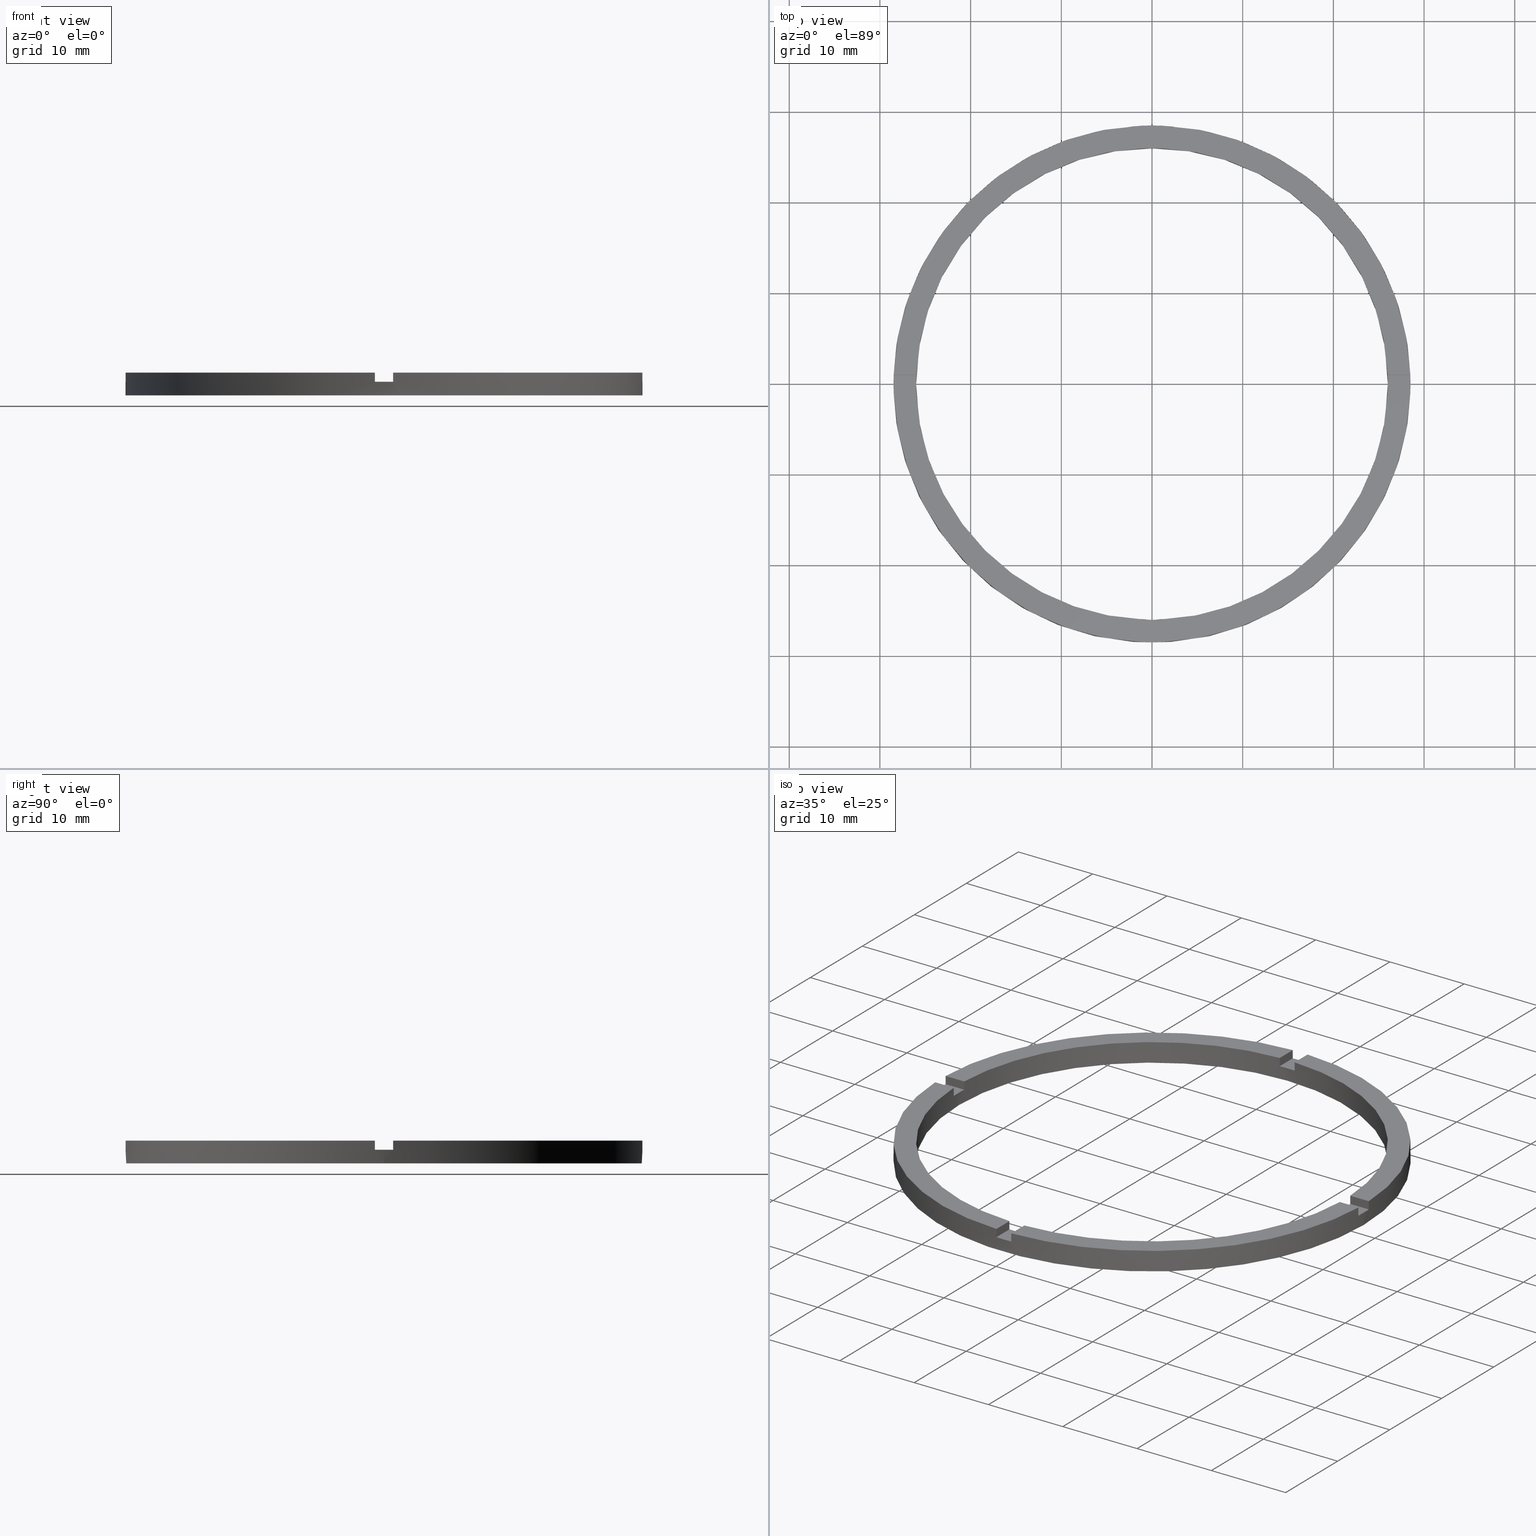
[diagram: canonical four-view strip — front | top / right | iso, engineering-drawing reading convention]
A machine part, canonical four-view strip (front | top / right | iso — engineering-drawing reading convention). The complete STEP part file that produces these views, byte-faithful:
ISO-10303-21;
HEADER;
FILE_DESCRIPTION (( 'STEP AP203' ),
    '1' );
FILE_NAME ('514119.step',
    '2024-12-26T02:39:20',
    ( 'MSI' ),
    ( '' ),
    'SwSTEP 2.0',
    'SolidWorks 2020',
    '' );
FILE_SCHEMA (( 'CONFIG_CONTROL_DESIGN' ));
ENDSEC;

DATA;
#1 = DIRECTION ( 'NONE',  ( -1.000000000000000000, -4.336808689942018352E-17, -0.000000000000000000 ) ) ;
#2 = EDGE_CURVE ( 'NONE', #60, #546, #38, .T. ) ;
#3 = DIRECTION ( 'NONE',  ( -1.301042606982605567E-16, 1.000000000000000000, -0.000000000000000000 ) ) ;
#4 = ADVANCED_FACE ( 'NONE', ( #574 ), #250, .T. ) ;
#5 = DIRECTION ( 'NONE',  ( 1.000000000000000000, 0.000000000000000000, 0.000000000000000000 ) ) ;
#6 = CARTESIAN_POINT ( 'NONE',  ( 0.9999999999998404610, -28.48245073725223264, 2.500000000000000000 ) ) ;
#7 = PERSON_AND_ORGANIZATION_ROLE ( 'design_supplier' ) ;
#8 = DIRECTION ( 'NONE',  ( 0.000000000000000000, 0.000000000000000000, 1.000000000000000000 ) ) ;
#9 = CARTESIAN_POINT ( 'NONE',  ( 0.000000000000000000, 0.000000000000000000, 1.500000000000000000 ) ) ;
#10 = CC_DESIGN_PERSON_AND_ORGANIZATION_ASSIGNMENT ( #206, #340, ( #618 ) ) ;
#11 = ADVANCED_FACE ( 'NONE', ( #47 ), #48, .T. ) ;
#12 = LINE ( 'NONE', #6, #277 ) ;
#13 = EDGE_CURVE ( 'NONE', #58, #718, #308, .T. ) ;
#14 = CARTESIAN_POINT ( 'NONE',  ( 0.9999999999998391287, -18.50000000000018474, 1.500000000000000000 ) ) ;
#15 = DIRECTION ( 'NONE',  ( 1.000000000000000000, 0.000000000000000000, 0.000000000000000000 ) ) ;
#16 = AXIS2_PLACEMENT_3D ( 'NONE', #771, #600, #246 ) ;
#17 = EDGE_CURVE ( 'NONE', #582, #305, #311, .T. ) ;
#18 = DIRECTION ( 'NONE',  ( -1.000000000000000000, -1.301042606982605567E-16, 0.000000000000000000 ) ) ;
#19 = DIRECTION ( 'NONE',  ( -0.000000000000000000, -0.000000000000000000, -1.000000000000000000 ) ) ;
#20 = DIRECTION ( 'NONE',  ( 1.000000000000000000, 0.000000000000000000, 0.000000000000000000 ) ) ;
#21 = ADVANCED_FACE ( 'NONE', ( #572 ), #304, .T. ) ;
#22 = DIRECTION ( 'NONE',  ( -0.000000000000000000, -0.000000000000000000, -1.000000000000000000 ) ) ;
#23 = CARTESIAN_POINT ( 'NONE',  ( 0.000000000000000000, 0.000000000000000000, 0.000000000000000000 ) ) ;
#24 = CARTESIAN_POINT ( 'NONE',  ( 26.00000000000000355, 3.184081677783118585E-15, 1.500000000000000000 ) ) ;
#25 = CARTESIAN_POINT ( 'NONE',  ( 0.000000000000000000, 0.000000000000000000, 1.500000000000000000 ) ) ;
#26 = LINE ( 'NONE', #310, #538 ) ;
#27 = ORIENTED_EDGE ( 'NONE', *, *, #177, .T. ) ;
#28 = DIRECTION ( 'NONE',  ( 1.000000000000000000, 0.000000000000000000, -0.000000000000000000 ) ) ;
#29 = ORIENTED_EDGE ( 'NONE', *, *, #494, .T. ) ;
#30 = CARTESIAN_POINT ( 'NONE',  ( -18.50000000000018474, -1.000000000000025313, 2.500000000000000000 ) ) ;
#31 = CC_DESIGN_PERSON_AND_ORGANIZATION_ASSIGNMENT ( #208, #557, ( #234 ) ) ;
#32 = EDGE_LOOP ( 'NONE', ( #575, #109, #556, #551 ) ) ;
#33 = EDGE_CURVE ( 'NONE', #51, #586, #41, .T. ) ;
#34 = DIRECTION ( 'NONE',  ( 0.000000000000000000, 0.000000000000000000, 1.000000000000000000 ) ) ;
#35 = VECTOR ( 'NONE', #601, 1000.000000000000000 ) ;
#36 = ORIENTED_EDGE ( 'NONE', *, *, #605, .T. ) ;
#37 = DIRECTION ( 'NONE',  ( -0.000000000000000000, -0.000000000000000000, -1.000000000000000000 ) ) ;
#38 = LINE ( 'NONE', #412, #35 ) ;
#39 = EDGE_CURVE ( 'NONE', #57, #305, #12, .T. ) ;
#40 = ORIENTED_EDGE ( 'NONE', *, *, #386, .T. ) ;
#41 = LINE ( 'NONE', #137, #301 ) ;
#42 = CARTESIAN_POINT ( 'NONE',  ( 0.000000000000000000, 0.000000000000000000, 2.500000000000000000 ) ) ;
#43 = ORIENTED_EDGE ( 'NONE', *, *, #33, .T. ) ;
#44 = DIRECTION ( 'NONE',  ( -0.000000000000000000, -0.000000000000000000, -1.000000000000000000 ) ) ;
#45 = ORIENTED_EDGE ( 'NONE', *, *, #762, .T. ) ;
#46 = DIRECTION ( 'NONE',  ( 1.000000000000000000, 0.000000000000000000, 0.000000000000000000 ) ) ;
#47 = FACE_OUTER_BOUND ( 'NONE', #55, .T. ) ;
#48 = CYLINDRICAL_SURFACE ( 'NONE', #630, 28.50000000000000000 ) ;
#49 = DIRECTION ( 'NONE',  ( 1.000000000000000000, 0.000000000000000000, 0.000000000000000000 ) ) ;
#50 = AXIS2_PLACEMENT_3D ( 'NONE', #88, #527, #15 ) ;
#51 = VERTEX_POINT ( 'NONE', #87 ) ;
#52 = EDGE_CURVE ( 'NONE', #743, #331, #26, .T. ) ;
#53 = ORIENTED_EDGE ( 'NONE', *, *, #39, .F. ) ;
#54 = CARTESIAN_POINT ( 'NONE',  ( -25.98076211353316367, -1.000000000000026645, 1.500000000000000000 ) ) ;
#55 = EDGE_LOOP ( 'NONE', ( #333, #619, #772, #599, #72, #91, #294, #591, #338, #79, #603, #777 ) ) ;
#56 = ORIENTED_EDGE ( 'NONE', *, *, #13, .F. ) ;
#57 = VERTEX_POINT ( 'NONE', #479 ) ;
#58 = VERTEX_POINT ( 'NONE', #564 ) ;
#59 = ORIENTED_EDGE ( 'NONE', *, *, #431, .F. ) ;
#60 = VERTEX_POINT ( 'NONE', #711 ) ;
#61 = AXIS2_PLACEMENT_3D ( 'NONE', #280, #350, #179 ) ;
#62 = CARTESIAN_POINT ( 'NONE',  ( -28.48245073725223264, 0.9999999999999729106, 2.500000000000000000 ) ) ;
#63 = VERTEX_POINT ( 'NONE', #93 ) ;
#64 = ORIENTED_EDGE ( 'NONE', *, *, #587, .F. ) ;
#65 = ORIENTED_EDGE ( 'NONE', *, *, #268, .F. ) ;
#66 = ORIENTED_EDGE ( 'NONE', *, *, #256, .T. ) ;
#67 = EDGE_LOOP ( 'NONE', ( #467, #43, #555, #319 ) ) ;
#68 = DIRECTION ( 'NONE',  ( 0.000000000000000000, 0.000000000000000000, 1.000000000000000000 ) ) ;
#69 = ORIENTED_EDGE ( 'NONE', *, *, #184, .T. ) ;
#70 = VERTEX_POINT ( 'NONE', #570 ) ;
#71 = EDGE_LOOP ( 'NONE', ( #78, #359, #367, #203 ) ) ;
#72 = ORIENTED_EDGE ( 'NONE', *, *, #504, .F. ) ;
#73 = ADVANCED_FACE ( 'NONE', ( #675 ), #649, .F. ) ;
#74 = VERTEX_POINT ( 'NONE', #720 ) ;
#75 = VERTEX_POINT ( 'NONE', #485 ) ;
#76 = CARTESIAN_POINT ( 'NONE',  ( 25.98076211353317078, 0.9999999999998430145, 2.500000000000000000 ) ) ;
#77 = CARTESIAN_POINT ( 'NONE',  ( 0.9999999999999735767, 28.48245073725223264, 2.500000000000000000 ) ) ;
#78 = ORIENTED_EDGE ( 'NONE', *, *, #160, .T. ) ;
#79 = ORIENTED_EDGE ( 'NONE', *, *, #693, .T. ) ;
#80 = ORIENTED_EDGE ( 'NONE', *, *, #231, .T. ) ;
#81 = AXIS2_PLACEMENT_3D ( 'NONE', #665, #680, #122 ) ;
#82 = ORIENTED_EDGE ( 'NONE', *, *, #184, .F. ) ;
#83 = DIRECTION ( 'NONE',  ( -0.000000000000000000, -0.000000000000000000, -1.000000000000000000 ) ) ;
#84 = PLANE ( 'NONE',  #169 ) ;
#85 = ORIENTED_EDGE ( 'NONE', *, *, #146, .F. ) ;
#86 = ORIENTED_EDGE ( 'NONE', *, *, #242, .F. ) ;
#87 = CARTESIAN_POINT ( 'NONE',  ( 0.9999999999999735767, 25.98076211353316367, 1.500000000000000000 ) ) ;
#88 = CARTESIAN_POINT ( 'NONE',  ( 0.000000000000000000, 0.000000000000000000, 2.500000000000000000 ) ) ;
#89 = ORIENTED_EDGE ( 'NONE', *, *, #579, .F. ) ;
#90 = ORIENTED_EDGE ( 'NONE', *, *, #366, .F. ) ;
#91 = ORIENTED_EDGE ( 'NONE', *, *, #192, .T. ) ;
#92 = ORIENTED_EDGE ( 'NONE', *, *, #386, .F. ) ;
#93 = CARTESIAN_POINT ( 'NONE',  ( -28.48245073725222909, -1.000000000000027089, 1.500000000000000000 ) ) ;
#94 = CARTESIAN_POINT ( 'NONE',  ( 25.98076211353317078, 0.9999999999998430145, 1.500000000000000000 ) ) ;
#95 = ORIENTED_EDGE ( 'NONE', *, *, #498, .F. ) ;
#96 = ORIENTED_EDGE ( 'NONE', *, *, #545, .F. ) ;
#97 = DIRECTION ( 'NONE',  ( 0.000000000000000000, 0.000000000000000000, 1.000000000000000000 ) ) ;
#98 = VERTEX_POINT ( 'NONE', #24 ) ;
#99 = ORIENTED_EDGE ( 'NONE', *, *, #125, .T. ) ;
#100 = DIRECTION ( 'NONE',  ( 0.000000000000000000, 0.000000000000000000, 1.000000000000000000 ) ) ;
#101 = CARTESIAN_POINT ( 'NONE',  ( 0.000000000000000000, 0.000000000000000000, 2.500000000000000000 ) ) ;
#102 = CARTESIAN_POINT ( 'NONE',  ( 25.98076211353317078, 0.9999999999998430145, 2.500000000000000000 ) ) ;
#103 = ORIENTED_EDGE ( 'NONE', *, *, #285, .T. ) ;
#104 = CALENDAR_DATE ( 2024, 26, 12 ) ;
#105 = ORIENTED_EDGE ( 'NONE', *, *, #775, .T. ) ;
#106 = CARTESIAN_POINT ( 'NONE',  ( 0.000000000000000000, 0.000000000000000000, 0.000000000000000000 ) ) ;
#107 = ORIENTED_EDGE ( 'NONE', *, *, #553, .F. ) ;
#108 = EDGE_CURVE ( 'NONE', #747, #70, #387, .T. ) ;
#109 = ORIENTED_EDGE ( 'NONE', *, *, #750, .T. ) ;
#110 = PLANE ( 'NONE',  #593 ) ;
#111 = DIRECTION ( 'NONE',  ( 1.000000000000000000, 0.000000000000000000, -0.000000000000000000 ) ) ;
#112 = ORIENTED_EDGE ( 'NONE', *, *, #443, .T. ) ;
#113 = CALENDAR_DATE ( 2024, 26, 12 ) ;
#114 = EDGE_LOOP ( 'NONE', ( #647, #66, #59, #65, #321, #251, #517, #569, #27, #518, #327, #584 ) ) ;
#115 = DIRECTION ( 'NONE',  ( -1.000000000000000000, 0.000000000000000000, 0.000000000000000000 ) ) ;
#116 = CC_DESIGN_PERSON_AND_ORGANIZATION_ASSIGNMENT ( #469, #452, ( #398 ) ) ;
#117 = EDGE_CURVE ( 'NONE', #317, #712, #682, .T. ) ;
#118 = CARTESIAN_POINT ( 'NONE',  ( -1.000000000000026423, 28.48245073725222909, 1.500000000000000000 ) ) ;
#119 = CARTESIAN_POINT ( 'NONE',  ( 0.000000000000000000, 0.000000000000000000, 2.500000000000000000 ) ) ;
#120 = CARTESIAN_POINT ( 'NONE',  ( 0.9999999999998391287, -18.50000000000018474, 1.500000000000000000 ) ) ;
#121 = CARTESIAN_POINT ( 'NONE',  ( 0.000000000000000000, 0.000000000000000000, 2.500000000000000000 ) ) ;
#122 = DIRECTION ( 'NONE',  ( 1.000000000000000000, 0.000000000000000000, 0.000000000000000000 ) ) ;
#123 = CC_DESIGN_SECURITY_CLASSIFICATION ( #234, ( #398 ) ) ;
#124 = CARTESIAN_POINT ( 'NONE',  ( 0.000000000000000000, 0.000000000000000000, 0.000000000000000000 ) ) ;
#125 = EDGE_CURVE ( 'NONE', #546, #604, #400, .T. ) ;
#126 = VECTOR ( 'NONE', #44, 1000.000000000000000 ) ;
#127 = LINE ( 'NONE', #536, #409 ) ;
#128 = LINE ( 'NONE', #447, #155 ) ;
#129 = CARTESIAN_POINT ( 'NONE',  ( 0.000000000000000000, 0.000000000000000000, 2.500000000000000000 ) ) ;
#130 = VECTOR ( 'NONE', #499, 1000.000000000000000 ) ;
#131 = VECTOR ( 'NONE', #222, 1000.000000000000000 ) ;
#132 = LINE ( 'NONE', #252, #140 ) ;
#133 = CIRCLE ( 'NONE', #267, 26.00000000000000355 ) ;
#134 = AXIS2_PLACEMENT_3D ( 'NONE', #528, #8, #335 ) ;
#135 = PRODUCT_DEFINITION_SHAPE ( 'NONE', 'NONE',  #448 ) ;
#136 = LINE ( 'NONE', #661, #393 ) ;
#137 = CARTESIAN_POINT ( 'NONE',  ( 0.9999999999999735767, 25.98076211353316367, 2.500000000000000000 ) ) ;
#138 = VECTOR ( 'NONE', #642, 1000.000000000000000 ) ;
#139 = VECTOR ( 'NONE', #406, 1000.000000000000000 ) ;
#140 = VECTOR ( 'NONE', #190, 1000.000000000000000 ) ;
#141 = VECTOR ( 'NONE', #460, 1000.000000000000000 ) ;
#142 = LINE ( 'NONE', #436, #683 ) ;
#143 = CIRCLE ( 'NONE', #291, 26.00000000000000355 ) ;
#144 = DIRECTION ( 'NONE',  ( 0.000000000000000000, -0.000000000000000000, 1.000000000000000000 ) ) ;
#145 = PLANE ( 'NONE',  #730 ) ;
#146 = EDGE_CURVE ( 'NONE', #57, #299, #676, .T. ) ;
#147 = VECTOR ( 'NONE', #297, 1000.000000000000000 ) ;
#148 = VECTOR ( 'NONE', #3, 1000.000000000000000 ) ;
#149 = LINE ( 'NONE', #411, #139 ) ;
#150 = CIRCLE ( 'NONE', #351, 26.00000000000000355 ) ;
#151 = APPROVAL ( #526, 'δָ��' ) ;
#152 = DIRECTION ( 'NONE',  ( -1.000000000000000000, 0.000000000000000000, 0.000000000000000000 ) ) ;
#153 = VECTOR ( 'NONE', #264, 1000.000000000000000 ) ;
#154 = EDGE_CURVE ( 'NONE', #98, #354, #404, .T. ) ;
#155 = VECTOR ( 'NONE', #315, 1000.000000000000000 ) ;
#156 = LINE ( 'NONE', #30, #650 ) ;
#157 = FACE_OUTER_BOUND ( 'NONE', #201, .T. ) ;
#158 = MANIFOLD_SOLID_BREP ( '�г�-����1', #336 ) ;
#159 = LINE ( 'NONE', #120, #445 ) ;
#160 = EDGE_CURVE ( 'NONE', #482, #368, #132, .T. ) ;
#161 = APPROVAL ( #509, 'δָ��' ) ;
#162 = VECTOR ( 'NONE', #34, 1000.000000000000000 ) ;
#163 = CARTESIAN_POINT ( 'NONE',  ( -1.000000000000160982, -18.50000000000018474, 1.500000000000000000 ) ) ;
#164 = LINE ( 'NONE', #314, #439 ) ;
#165 = LINE ( 'NONE', #722, #432 ) ;
#166 = DIRECTION ( 'NONE',  ( 1.000000000000000000, 0.000000000000000000, 0.000000000000000000 ) ) ;
#167 = CYLINDRICAL_SURFACE ( 'NONE', #529, 26.00000000000000355 ) ;
#168 = DIRECTION ( 'NONE',  ( 0.000000000000000000, -0.000000000000000000, 1.000000000000000000 ) ) ;
#169 = AXIS2_PLACEMENT_3D ( 'NONE', #9, #760, #261 ) ;
#170 = AXIS2_PLACEMENT_3D ( 'NONE', #507, #748, #375 ) ;
#171 = CIRCLE ( 'NONE', #337, 28.50000000000000000 ) ;
#172 = DIRECTION ( 'NONE',  ( 0.000000000000000000, 0.000000000000000000, 1.000000000000000000 ) ) ;
#173 = EDGE_CURVE ( 'NONE', #75, #484, #143, .T. ) ;
#174 = FACE_OUTER_BOUND ( 'NONE', #211, .T. ) ;
#175 = FACE_OUTER_BOUND ( 'NONE', #560, .T. ) ;
#176 = VECTOR ( 'NONE', #759, 1000.000000000000000 ) ;
#177 = EDGE_CURVE ( 'NONE', #326, #342, #413, .T. ) ;
#178 = FACE_OUTER_BOUND ( 'NONE', #114, .T. ) ;
#179 = DIRECTION ( 'NONE',  ( 0.000000000000000000, 0.000000000000000000, -1.000000000000000000 ) ) ;
#180 = LINE ( 'NONE', #516, #456 ) ;
#181 = VECTOR ( 'NONE', #347, 1000.000000000000000 ) ;
#182 = AXIS2_PLACEMENT_3D ( 'NONE', #433, #781, #659 ) ;
#183 = DIRECTION ( 'NONE',  ( 0.000000000000000000, 0.000000000000000000, 1.000000000000000000 ) ) ;
#184 = EDGE_CURVE ( 'NONE', #610, #744, #658, .T. ) ;
#185 = CARTESIAN_POINT ( 'NONE',  ( 28.50000000000000000, 3.490243377569956456E-15, 1.500000000000000000 ) ) ;
#186 = CIRCLE ( 'NONE', #134, 26.00000000000000355 ) ;
#187 =( NAMED_UNIT ( * ) PLANE_ANGLE_UNIT ( ) SI_UNIT ( $, .RADIAN. ) );
#188 = LINE ( 'NONE', #633, #176 ) ;
#189 = CARTESIAN_POINT ( 'NONE',  ( 0.000000000000000000, 0.000000000000000000, 1.500000000000000000 ) ) ;
#190 = DIRECTION ( 'NONE',  ( -1.000000000000000000, -4.336808689942018352E-17, -0.000000000000000000 ) ) ;
#191 = LOCAL_TIME ( 10, 39, 20.00000000000000000, #478 ) ;
#192 = EDGE_CURVE ( 'NONE', #744, #616, #390, .T. ) ;
#193 = COORDINATED_UNIVERSAL_TIME_OFFSET ( 8, 0, .AHEAD. ) ;
#194 = EDGE_LOOP ( 'NONE', ( #92, #609, #623, #374 ) ) ;
#195 = CARTESIAN_POINT ( 'NONE',  ( 25.98076211353315657, -1.000000000000156986, 2.500000000000000000 ) ) ;
#196 = PERSON_AND_ORGANIZATION ( #270, #721 ) ;
#197 = DATE_AND_TIME ( #476, #465 ) ;
#198 = CALENDAR_DATE ( 2024, 26, 12 ) ;
#199 = CC_DESIGN_APPROVAL ( #161, ( #398 ) ) ;
#200 = DATE_AND_TIME ( #473, #725 ) ;
#201 = EDGE_LOOP ( 'NONE', ( #622, #86, #103, #349, #749, #207, #105, #613, #372, #629, #576, #99 ) ) ;
#202 = DIRECTION ( 'NONE',  ( -0.000000000000000000, -0.000000000000000000, -1.000000000000000000 ) ) ;
#203 = ORIENTED_EDGE ( 'NONE', *, *, #424, .F. ) ;
#204 = PERSON_AND_ORGANIZATION ( #270, #721 ) ;
#205 = DIRECTION ( 'NONE',  ( 1.000000000000000000, 0.000000000000000000, 0.000000000000000000 ) ) ;
#206 = PERSON_AND_ORGANIZATION ( #270, #721 ) ;
#207 = ORIENTED_EDGE ( 'NONE', *, *, #17, .F. ) ;
#208 = PERSON_AND_ORGANIZATION ( #270, #721 ) ;
#209 = ADVANCED_FACE ( 'NONE', ( #401 ), #248, .F. ) ;
#210 = DIRECTION ( 'NONE',  ( -0.000000000000000000, -0.000000000000000000, -1.000000000000000000 ) ) ;
#211 = EDGE_LOOP ( 'NONE', ( #112, #80, #64, #621 ) ) ;
#212 = ORIENTED_EDGE ( 'NONE', *, *, #542, .T. ) ;
#213 = ORIENTED_EDGE ( 'NONE', *, *, #52, .T. ) ;
#214 = EDGE_LOOP ( 'NONE', ( #341, #597, #329, #589 ) ) ;
#215 = ORIENTED_EDGE ( 'NONE', *, *, #645, .T. ) ;
#216 = AXIS2_PLACEMENT_3D ( 'NONE', #276, #97, #235 ) ;
#217 = ADVANCED_FACE ( 'NONE', ( #418 ), #407, .F. ) ;
#218 = VERTEX_POINT ( 'NONE', #626 ) ;
#219 = DIRECTION ( 'NONE',  ( 1.000000000000000000, 4.336808689942018352E-17, 0.000000000000000000 ) ) ;
#220 = ORIENTED_EDGE ( 'NONE', *, *, #125, .F. ) ;
#221 = DIRECTION ( 'NONE',  ( -0.000000000000000000, -0.000000000000000000, -1.000000000000000000 ) ) ;
#222 = DIRECTION ( 'NONE',  ( -0.000000000000000000, -0.000000000000000000, -1.000000000000000000 ) ) ;
#223 = CARTESIAN_POINT ( 'NONE',  ( 0.000000000000000000, 0.000000000000000000, 2.500000000000000000 ) ) ;
#224 = CARTESIAN_POINT ( 'NONE',  ( -26.00000000000000355, 0.000000000000000000, 0.000000000000000000 ) ) ;
#225 = AXIS2_PLACEMENT_3D ( 'NONE', #325, #767, #111 ) ;
#226 = CARTESIAN_POINT ( 'NONE',  ( 18.50000000000000000, -1.000000000000157208, 1.500000000000000000 ) ) ;
#227 = CARTESIAN_POINT ( 'NONE',  ( -1.000000000000159872, -25.98076211353315657, 1.500000000000000000 ) ) ;
#228 = ORIENTED_EDGE ( 'NONE', *, *, #431, .T. ) ;
#229 = PLANE ( 'NONE',  #780 ) ;
#230 = CARTESIAN_POINT ( 'NONE',  ( -1.000000000000026423, 25.98076211353316367, 1.500000000000000000 ) ) ;
#231 = EDGE_CURVE ( 'NONE', #75, #712, #420, .T. ) ;
#232 = APPLICATION_CONTEXT ( 'configuration controlled 3d designs of mechanical parts and assemblies' ) ;
#233 = CARTESIAN_POINT ( 'NONE',  ( -18.50000000000018474, 0.9999999999999746869, 1.500000000000000000 ) ) ;
#234 = SECURITY_CLASSIFICATION ( '', '', #313 ) ;
#235 = DIRECTION ( 'NONE',  ( 1.000000000000000000, 0.000000000000000000, 0.000000000000000000 ) ) ;
#236 = DIRECTION ( 'NONE',  ( 1.000000000000000000, 1.734723475976807341E-16, -0.000000000000000000 ) ) ;
#237 = APPLICATION_PROTOCOL_DEFINITION ( 'international standard', 'config_control_design', 1994, #232 ) ;
#238 = AXIS2_PLACEMENT_3D ( 'NONE', #450, #687, #533 ) ;
#239 = CARTESIAN_POINT ( 'NONE',  ( 0.000000000000000000, 0.000000000000000000, 2.500000000000000000 ) ) ;
#240 = DIRECTION ( 'NONE',  ( 1.000000000000000000, 0.000000000000000000, -0.000000000000000000 ) ) ;
#241 = DIRECTION ( 'NONE',  ( -1.301042606982605567E-16, 1.000000000000000000, -0.000000000000000000 ) ) ;
#242 = EDGE_CURVE ( 'NONE', #718, #632, #395, .T. ) ;
#243 = CARTESIAN_POINT ( 'NONE',  ( 0.000000000000000000, 0.000000000000000000, 1.500000000000000000 ) ) ;
#244 = CARTESIAN_POINT ( 'NONE',  ( 0.000000000000000000, 0.000000000000000000, 2.500000000000000000 ) ) ;
#245 =( GEOMETRIC_REPRESENTATION_CONTEXT ( 3 ) GLOBAL_UNCERTAINTY_ASSIGNED_CONTEXT ( ( #766 ) ) GLOBAL_UNIT_ASSIGNED_CONTEXT ( ( #537, #187, #662 ) ) REPRESENTATION_CONTEXT ( 'NONE', 'WORKASPACE' ) );
#246 = DIRECTION ( 'NONE',  ( 1.000000000000000000, 1.734723475976807341E-16, 0.000000000000000000 ) ) ;
#247 = DIRECTION ( 'NONE',  ( -0.000000000000000000, -0.000000000000000000, -1.000000000000000000 ) ) ;
#248 = PLANE ( 'NONE',  #238 ) ;
#249 = CARTESIAN_POINT ( 'NONE',  ( -28.48245073725223264, 0.9999999999999729106, 1.500000000000000000 ) ) ;
#250 = PLANE ( 'NONE',  #515 ) ;
#251 = ORIENTED_EDGE ( 'NONE', *, *, #231, .F. ) ;
#252 = CARTESIAN_POINT ( 'NONE',  ( 18.50000000000000000, 0.9999999999998427924, 2.500000000000000000 ) ) ;
#253 = EDGE_LOOP ( 'NONE', ( #220, #488 ) ) ;
#254 = AXIS2_PLACEMENT_3D ( 'NONE', #454, #612, #5 ) ;
#255 = CARTESIAN_POINT ( 'NONE',  ( -18.50000000000018474, 0.9999999999999746869, 1.500000000000000000 ) ) ;
#256 = EDGE_CURVE ( 'NONE', #98, #74, #142, .T. ) ;
#257 = DIRECTION ( 'NONE',  ( -0.000000000000000000, -0.000000000000000000, -1.000000000000000000 ) ) ;
#258 = APPROVAL ( #543, 'δָ��' ) ;
#259 = ADVANCED_FACE ( 'NONE', ( #656 ), #145, .F. ) ;
#260 = CARTESIAN_POINT ( 'NONE',  ( -1.000000000000159650, -28.48245073725222554, 1.500000000000000000 ) ) ;
#261 = DIRECTION ( 'NONE',  ( 1.000000000000000000, 0.000000000000000000, 0.000000000000000000 ) ) ;
#262 = AXIS2_PLACEMENT_3D ( 'NONE', #233, #332, #405 ) ;
#263 = DIRECTION ( 'NONE',  ( 1.000000000000000000, 4.336808689942018352E-17, 0.000000000000000000 ) ) ;
#264 = DIRECTION ( 'NONE',  ( 0.000000000000000000, 1.000000000000000000, 0.000000000000000000 ) ) ;
#265 = DIRECTION ( 'NONE',  ( 0.000000000000000000, 0.000000000000000000, 1.000000000000000000 ) ) ;
#266 = CARTESIAN_POINT ( 'NONE',  ( 0.000000000000000000, 0.000000000000000000, 2.500000000000000000 ) ) ;
#267 = AXIS2_PLACEMENT_3D ( 'NONE', #278, #737, #497 ) ;
#268 = EDGE_CURVE ( 'NONE', #317, #617, #666, .T. ) ;
#269 = CARTESIAN_POINT ( 'NONE',  ( -1.000000000000026423, 28.48245073725222909, 2.500000000000000000 ) ) ;
#270 = PERSON ( 'δָ��', 'δָ��', 'δָ��', ('δָ��'), ('δָ��'), ('δָ��') ) ;
#271 = PLANE ( 'NONE',  #751 ) ;
#272 = ADVANCED_FACE ( 'NONE', ( #653 ), #84, .T. ) ;
#273 = MECHANICAL_CONTEXT ( 'NONE', #232, 'mechanical' ) ;
#274 = CARTESIAN_POINT ( 'NONE',  ( -26.00000000000000355, 0.000000000000000000, 1.500000000000000000 ) ) ;
#275 = EDGE_CURVE ( 'NONE', #586, #288, #397, .T. ) ;
#276 = CARTESIAN_POINT ( 'NONE',  ( 0.000000000000000000, 0.000000000000000000, 1.500000000000000000 ) ) ;
#277 = VECTOR ( 'NONE', #19, 1000.000000000000000 ) ;
#278 = CARTESIAN_POINT ( 'NONE',  ( 0.000000000000000000, 0.000000000000000000, 1.500000000000000000 ) ) ;
#279 = CARTESIAN_POINT ( 'NONE',  ( 0.000000000000000000, 0.000000000000000000, 1.500000000000000000 ) ) ;
#280 = CARTESIAN_POINT ( 'NONE',  ( 0.9999999999999735767, 18.50000000000000355, 1.500000000000000000 ) ) ;
#281 = EDGE_CURVE ( 'NONE', #484, #70, #128, .T. ) ;
#282 = CARTESIAN_POINT ( 'NONE',  ( 25.98076211353315657, -1.000000000000156986, 2.500000000000000000 ) ) ;
#283 = PLANE ( 'NONE',  #640 ) ;
#284 = DIRECTION ( 'NONE',  ( 0.000000000000000000, 0.000000000000000000, 1.000000000000000000 ) ) ;
#285 = EDGE_CURVE ( 'NONE', #718, #331, #414, .T. ) ;
#286 = DIRECTION ( 'NONE',  ( 0.000000000000000000, 0.000000000000000000, 1.000000000000000000 ) ) ;
#287 = AXIS2_PLACEMENT_3D ( 'NONE', #415, #172, #512 ) ;
#288 = VERTEX_POINT ( 'NONE', #77 ) ;
#289 = CARTESIAN_POINT ( 'NONE',  ( -1.000000000000026423, 25.98076211353316367, 2.500000000000000000 ) ) ;
#290 = DIRECTION ( 'NONE',  ( 0.000000000000000000, 0.000000000000000000, 1.000000000000000000 ) ) ;
#291 = AXIS2_PLACEMENT_3D ( 'NONE', #129, #286, #205 ) ;
#292 = ORIENTED_EDGE ( 'NONE', *, *, #281, .F. ) ;
#293 = ORIENTED_EDGE ( 'NONE', *, *, #775, .F. ) ;
#294 = ORIENTED_EDGE ( 'NONE', *, *, #678, .F. ) ;
#295 = ORIENTED_EDGE ( 'NONE', *, *, #587, .T. ) ;
#296 = ORIENTED_EDGE ( 'NONE', *, *, #522, .T. ) ;
#297 = DIRECTION ( 'NONE',  ( 0.000000000000000000, 0.000000000000000000, 1.000000000000000000 ) ) ;
#298 = VECTOR ( 'NONE', #219, 1000.000000000000000 ) ;
#299 = VERTEX_POINT ( 'NONE', #513 ) ;
#300 = AXIS2_PLACEMENT_3D ( 'NONE', #124, #741, #502 ) ;
#301 = VECTOR ( 'NONE', #265, 1000.000000000000000 ) ;
#302 = EDGE_LOOP ( 'NONE', ( #595, #345, #627, #53 ) ) ;
#303 = ORIENTED_EDGE ( 'NONE', *, *, #739, .T. ) ;
#304 = PLANE ( 'NONE',  #417 ) ;
#305 = VERTEX_POINT ( 'NONE', #756 ) ;
#306 = ORIENTED_EDGE ( 'NONE', *, *, #33, .F. ) ;
#307 = ADVANCED_FACE ( 'NONE', ( #663, #668 ), #713, .F. ) ;
#308 = LINE ( 'NONE', #226, #298 ) ;
#309 = ORIENTED_EDGE ( 'NONE', *, *, #242, .T. ) ;
#310 = CARTESIAN_POINT ( 'NONE',  ( 18.50000000000000000, -1.000000000000157208, 2.500000000000000000 ) ) ;
#311 = CIRCLE ( 'NONE', #746, 28.50000000000000000 ) ;
#312 = EDGE_LOOP ( 'NONE', ( #377, #611, #107, #376, #306, #352, #567, #489, #358, #212, #369, #364 ) ) ;
#313 = SECURITY_CLASSIFICATION_LEVEL ( 'unclassified' ) ;
#314 = CARTESIAN_POINT ( 'NONE',  ( -18.50000000000018474, -1.000000000000025313, 1.500000000000000000 ) ) ;
#315 = DIRECTION ( 'NONE',  ( 1.301042606982605567E-16, -1.000000000000000000, 0.000000000000000000 ) ) ;
#316 = ORIENTED_EDGE ( 'NONE', *, *, #757, .T. ) ;
#317 = VERTEX_POINT ( 'NONE', #274 ) ;
#318 = CC_DESIGN_PERSON_AND_ORGANIZATION_ASSIGNMENT ( #735, #7, ( #398 ) ) ;
#319 = ORIENTED_EDGE ( 'NONE', *, *, #693, .F. ) ;
#320 = EDGE_CURVE ( 'NONE', #218, #616, #149, .T. ) ;
#321 = ORIENTED_EDGE ( 'NONE', *, *, #117, .T. ) ;
#322 = CARTESIAN_POINT ( 'NONE',  ( 28.50000000000000000, 3.490243377569956456E-15, 0.000000000000000000 ) ) ;
#323 = ORIENTED_EDGE ( 'NONE', *, *, #173, .F. ) ;
#324 = ORIENTED_EDGE ( 'NONE', *, *, #542, .F. ) ;
#325 = CARTESIAN_POINT ( 'NONE',  ( 0.000000000000000000, 0.000000000000000000, 0.000000000000000000 ) ) ;
#326 = VERTEX_POINT ( 'NONE', #227 ) ;
#327 = ORIENTED_EDGE ( 'NONE', *, *, #545, .T. ) ;
#328 = DIRECTION ( 'NONE',  ( 1.000000000000000000, 0.000000000000000000, -0.000000000000000000 ) ) ;
#329 = ORIENTED_EDGE ( 'NONE', *, *, #481, .F. ) ;
#330 = CC_DESIGN_DATE_AND_TIME_ASSIGNMENT ( #197, #577, ( #448 ) ) ;
#331 = VERTEX_POINT ( 'NONE', #491 ) ;
#332 = DIRECTION ( 'NONE',  ( -1.734723475976807341E-16, 1.000000000000000000, 0.000000000000000000 ) ) ;
#333 = ORIENTED_EDGE ( 'NONE', *, *, #645, .F. ) ;
#334 = ORIENTED_EDGE ( 'NONE', *, *, #13, .T. ) ;
#335 = DIRECTION ( 'NONE',  ( 1.000000000000000000, 0.000000000000000000, 0.000000000000000000 ) ) ;
#336 = CLOSED_SHELL ( 'NONE', ( #691, #11, #382, #625, #21, #508, #307, #523, #217, #699, #73, #4, #259, #510, #272, #209, #764, #774, #548, #644, #519 ) ) ;
#337 = AXIS2_PLACEMENT_3D ( 'NONE', #42, #580, #729 ) ;
#338 = ORIENTED_EDGE ( 'NONE', *, *, #353, .F. ) ;
#339 = EDGE_CURVE ( 'NONE', #326, #582, #423, .T. ) ;
#340 = PERSON_AND_ORGANIZATION_ROLE ( 'design_owner' ) ;
#341 = ORIENTED_EDGE ( 'NONE', *, *, #353, .T. ) ;
#342 = VERTEX_POINT ( 'NONE', #765 ) ;
#343 = DIRECTION ( 'NONE',  ( 1.000000000000000000, 0.000000000000000000, 0.000000000000000000 ) ) ;
#344 = ORIENTED_EDGE ( 'NONE', *, *, #117, .F. ) ;
#345 = ORIENTED_EDGE ( 'NONE', *, *, #505, .T. ) ;
#346 = EDGE_CURVE ( 'NONE', #769, #218, #416, .T. ) ;
#347 = DIRECTION ( 'NONE',  ( -0.000000000000000000, -0.000000000000000000, -1.000000000000000000 ) ) ;
#348 = ORIENTED_EDGE ( 'NONE', *, *, #160, .F. ) ;
#349 = ORIENTED_EDGE ( 'NONE', *, *, #739, .F. ) ;
#350 = DIRECTION ( 'NONE',  ( 1.000000000000000000, -0.000000000000000000, 0.000000000000000000 ) ) ;
#351 = AXIS2_PLACEMENT_3D ( 'NONE', #360, #646, #724 ) ;
#352 = ORIENTED_EDGE ( 'NONE', *, *, #481, .T. ) ;
#353 = EDGE_CURVE ( 'NONE', #581, #728, #679, .T. ) ;
#354 = VERTEX_POINT ( 'NONE', #94 ) ;
#355 = DIRECTION ( 'NONE',  ( -0.000000000000000000, -1.000000000000000000, -0.000000000000000000 ) ) ;
#356 = CARTESIAN_POINT ( 'NONE',  ( 18.50000000000000000, -1.000000000000157208, 1.500000000000000000 ) ) ;
#357 = VERTEX_POINT ( 'NONE', #230 ) ;
#358 = ORIENTED_EDGE ( 'NONE', *, *, #605, .F. ) ;
#359 = ORIENTED_EDGE ( 'NONE', *, *, #553, .T. ) ;
#360 = CARTESIAN_POINT ( 'NONE',  ( 0.000000000000000000, 0.000000000000000000, 0.000000000000000000 ) ) ;
#361 = EDGE_LOOP ( 'NONE', ( #40, #316, #95, #90 ) ) ;
#362 = SHAPE_DEFINITION_REPRESENTATION ( #135, #425 ) ;
#363 = DIRECTION ( 'NONE',  ( 4.336808689942018352E-17, -1.000000000000000000, 0.000000000000000000 ) ) ;
#364 = ORIENTED_EDGE ( 'NONE', *, *, #525, .F. ) ;
#365 = DIRECTION ( 'NONE',  ( -1.000000000000000000, 0.000000000000000000, 0.000000000000000000 ) ) ;
#366 = EDGE_CURVE ( 'NONE', #464, #728, #657, .T. ) ;
#367 = ORIENTED_EDGE ( 'NONE', *, *, #494, .F. ) ;
#368 = VERTEX_POINT ( 'NONE', #102 ) ;
#369 = ORIENTED_EDGE ( 'NONE', *, *, #268, .T. ) ;
#370 = APPROVAL_PERSON_ORGANIZATION ( #638, #258, #752 ) ;
#371 = DIRECTION ( 'NONE',  ( 1.000000000000000000, 4.336808689942018352E-17, 0.000000000000000000 ) ) ;
#372 = ORIENTED_EDGE ( 'NONE', *, *, #561, .T. ) ;
#373 = CC_DESIGN_APPROVAL ( #151, ( #448 ) ) ;
#374 = ORIENTED_EDGE ( 'NONE', *, *, #346, .F. ) ;
#375 = DIRECTION ( 'NONE',  ( 1.000000000000000000, 0.000000000000000000, 0.000000000000000000 ) ) ;
#376 = ORIENTED_EDGE ( 'NONE', *, *, #579, .T. ) ;
#377 = ORIENTED_EDGE ( 'NONE', *, *, #256, .F. ) ;
#378 = ORIENTED_EDGE ( 'NONE', *, *, #275, .F. ) ;
#379 = AXIS2_PLACEMENT_3D ( 'NONE', #101, #444, #614 ) ;
#380 = DATE_AND_TIME ( #113, #191 ) ;
#381 = APPROVAL_DATE_TIME ( #624, #258 ) ;
#382 = ADVANCED_FACE ( 'NONE', ( #421 ), #283, .T. ) ;
#383 = CARTESIAN_POINT ( 'NONE',  ( 0.9999999999998402389, -25.98076211353317078, 2.500000000000000000 ) ) ;
#384 = AXIS2_PLACEMENT_3D ( 'NONE', #106, #492, #343 ) ;
#385 = EDGE_CURVE ( 'NONE', #482, #288, #660, .T. ) ;
#386 = EDGE_CURVE ( 'NONE', #464, #769, #673, .T. ) ;
#387 = CIRCLE ( 'NONE', #379, 28.50000000000000000 ) ;
#388 = CARTESIAN_POINT ( 'NONE',  ( 0.9999999999999735767, 28.48245073725223264, 1.500000000000000000 ) ) ;
#389 = CARTESIAN_POINT ( 'NONE',  ( 28.48245073725222554, -1.000000000000156763, 2.500000000000000000 ) ) ;
#390 = LINE ( 'NONE', #62, #147 ) ;
#391 = CIRCLE ( 'NONE', #521, 28.50000000000000000 ) ;
#392 = AXIS2_PLACEMENT_3D ( 'NONE', #768, #144, #328 ) ;
#393 = VECTOR ( 'NONE', #355, 1000.000000000000000 ) ;
#394 = APPROVAL_ROLE ( '' ) ;
#395 = CIRCLE ( 'NONE', #254, 28.50000000000000000 ) ;
#396 = DIRECTION ( 'NONE',  ( 1.000000000000000000, 0.000000000000000000, 0.000000000000000000 ) ) ;
#397 = LINE ( 'NONE', #686, #153 ) ;
#398 = PRODUCT_DEFINITION_FORMATION_WITH_SPECIFIED_SOURCE ( '�κ�', '', #618, .NOT_KNOWN. ) ;
#399 = VECTOR ( 'NONE', #571, 1000.000000000000000 ) ;
#400 = CIRCLE ( 'NONE', #466, 28.50000000000000000 ) ;
#401 = FACE_OUTER_BOUND ( 'NONE', #71, .T. ) ;
#402 = CARTESIAN_POINT ( 'NONE',  ( -1.000000000000026423, 18.50000000000000355, 1.500000000000000000 ) ) ;
#403 = VECTOR ( 'NONE', #210, 1000.000000000000000 ) ;
#404 = CIRCLE ( 'NONE', #540, 26.00000000000000355 ) ;
#405 = DIRECTION ( 'NONE',  ( -1.000000000000000000, -1.734723475976807341E-16, 0.000000000000000000 ) ) ;
#406 = DIRECTION ( 'NONE',  ( -1.000000000000000000, -1.734723475976807341E-16, 0.000000000000000000 ) ) ;
#407 = CYLINDRICAL_SURFACE ( 'NONE', #770, 26.00000000000000355 ) ;
#408 = CARTESIAN_POINT ( 'NONE',  ( -28.50000000000000000, 0.000000000000000000, 0.000000000000000000 ) ) ;
#409 = VECTOR ( 'NONE', #1, 1000.000000000000000 ) ;
#410 = DIRECTION ( 'NONE',  ( 1.000000000000000000, 0.000000000000000000, -0.000000000000000000 ) ) ;
#411 = CARTESIAN_POINT ( 'NONE',  ( -18.50000000000018474, 0.9999999999999746869, 2.500000000000000000 ) ) ;
#412 = CARTESIAN_POINT ( 'NONE',  ( -28.50000000000000000, 0.000000000000000000, 2.500000000000000000 ) ) ;
#413 = CIRCLE ( 'NONE', #170, 26.00000000000000355 ) ;
#414 = LINE ( 'NONE', #389, #677 ) ;
#415 = CARTESIAN_POINT ( 'NONE',  ( 0.000000000000000000, 0.000000000000000000, 1.500000000000000000 ) ) ;
#416 = CIRCLE ( 'NONE', #50, 26.00000000000000355 ) ;
#417 = AXIS2_PLACEMENT_3D ( 'NONE', #223, #68, #754 ) ;
#418 = FACE_OUTER_BOUND ( 'NONE', #312, .T. ) ;
#419 = CARTESIAN_POINT ( 'NONE',  ( -1.000000000000026423, 25.98076211353316367, 2.500000000000000000 ) ) ;
#420 = LINE ( 'NONE', #672, #141 ) ;
#421 = FACE_OUTER_BOUND ( 'NONE', #194, .T. ) ;
#422 = DIRECTION ( 'NONE',  ( 0.000000000000000000, 0.000000000000000000, 1.000000000000000000 ) ) ;
#423 = LINE ( 'NONE', #486, #138 ) ;
#424 = EDGE_CURVE ( 'NONE', #482, #607, #685, .T. ) ;
#425 = ADVANCED_BREP_SHAPE_REPRESENTATION ( '514119', ( #158, #717 ), #245 ) ;
#426 = CARTESIAN_POINT ( 'NONE',  ( -1.000000000000159650, -28.48245073725222554, 2.500000000000000000 ) ) ;
#427 = DIRECTION ( 'NONE',  ( 1.000000000000000000, 0.000000000000000000, 0.000000000000000000 ) ) ;
#428 = CIRCLE ( 'NONE', #430, 28.50000000000000000 ) ;
#429 = VECTOR ( 'NONE', #535, 1000.000000000000000 ) ;
#430 = AXIS2_PLACEMENT_3D ( 'NONE', #738, #422, #531 ) ;
#431 = EDGE_CURVE ( 'NONE', #617, #74, #150, .T. ) ;
#432 = VECTOR ( 'NONE', #83, 1000.000000000000000 ) ;
#433 = CARTESIAN_POINT ( 'NONE',  ( 0.000000000000000000, 0.000000000000000000, 2.500000000000000000 ) ) ;
#434 = CIRCLE ( 'NONE', #300, 28.50000000000000000 ) ;
#435 = CARTESIAN_POINT ( 'NONE',  ( 0.9999999999999735767, 18.50000000000000355, 1.500000000000000000 ) ) ;
#436 = CARTESIAN_POINT ( 'NONE',  ( 26.00000000000000355, 3.184081677783118585E-15, 2.500000000000000000 ) ) ;
#437 = DIRECTION ( 'NONE',  ( 0.000000000000000000, 0.000000000000000000, 1.000000000000000000 ) ) ;
#438 = FACE_OUTER_BOUND ( 'NONE', #67, .T. ) ;
#439 = VECTOR ( 'NONE', #550, 1000.000000000000000 ) ;
#440 = LINE ( 'NONE', #495, #429 ) ;
#441 = DIRECTION ( 'NONE',  ( 0.000000000000000000, 0.000000000000000000, 1.000000000000000000 ) ) ;
#442 = VECTOR ( 'NONE', #726, 1000.000000000000000 ) ;
#443 = EDGE_CURVE ( 'NONE', #747, #75, #156, .T. ) ;
#444 = DIRECTION ( 'NONE',  ( 0.000000000000000000, 0.000000000000000000, 1.000000000000000000 ) ) ;
#445 = VECTOR ( 'NONE', #241, 1000.000000000000000 ) ;
#446 = DATE_TIME_ROLE ( 'classification_date' ) ;
#447 = CARTESIAN_POINT ( 'NONE',  ( -1.000000000000160982, -18.50000000000018474, 2.500000000000000000 ) ) ;
#448 = PRODUCT_DEFINITION ( 'δ֪', '', #398, #708 ) ;
#449 = LINE ( 'NONE', #76, #705 ) ;
#450 = CARTESIAN_POINT ( 'NONE',  ( 18.50000000000000000, 0.9999999999998427924, 1.500000000000000000 ) ) ;
#451 = VECTOR ( 'NONE', #441, 1000.000000000000000 ) ;
#452 = PERSON_AND_ORGANIZATION_ROLE ( 'creator' ) ;
#453 = ORIENTED_EDGE ( 'NONE', *, *, #285, .F. ) ;
#454 = CARTESIAN_POINT ( 'NONE',  ( 0.000000000000000000, 0.000000000000000000, 1.500000000000000000 ) ) ;
#455 = CIRCLE ( 'NONE', #216, 28.50000000000000000 ) ;
#456 = VECTOR ( 'NONE', #22, 1000.000000000000000 ) ;
#457 = LINE ( 'NONE', #289, #181 ) ;
#458 = EDGE_LOOP ( 'NONE', ( #292, #323, #588, #731 ) ) ;
#459 = FACE_OUTER_BOUND ( 'NONE', #565, .T. ) ;
#460 = DIRECTION ( 'NONE',  ( -0.000000000000000000, -0.000000000000000000, -1.000000000000000000 ) ) ;
#461 = PERSON_AND_ORGANIZATION ( #270, #721 ) ;
#462 = DATE_AND_TIME ( #198, #727 ) ;
#463 = APPROVAL_PERSON_ORGANIZATION ( #196, #151, #585 ) ;
#464 = VERTEX_POINT ( 'NONE', #583 ) ;
#465 = LOCAL_TIME ( 10, 39, 20.00000000000000000, #732 ) ;
#466 = AXIS2_PLACEMENT_3D ( 'NONE', #539, #674, #49 ) ;
#467 = ORIENTED_EDGE ( 'NONE', *, *, #753, .F. ) ;
#468 = DIRECTION ( 'NONE',  ( -1.301042606982605567E-16, 1.000000000000000000, 0.000000000000000000 ) ) ;
#469 = PERSON_AND_ORGANIZATION ( #270, #721 ) ;
#470 = EDGE_CURVE ( 'NONE', #58, #98, #133, .T. ) ;
#471 = APPROVAL_PERSON_ORGANIZATION ( #461, #161, #394 ) ;
#472 = EDGE_LOOP ( 'NONE', ( #636, #96, #85, #303 ) ) ;
#473 = CALENDAR_DATE ( 2024, 26, 12 ) ;
#474 = COORDINATED_UNIVERSAL_TIME_OFFSET ( 8, 0, .AHEAD. ) ;
#475 = PLANE ( 'NONE',  #500 ) ;
#476 = CALENDAR_DATE ( 2024, 26, 12 ) ;
#477 = ORIENTED_EDGE ( 'NONE', *, *, #525, .T. ) ;
#478 = COORDINATED_UNIVERSAL_TIME_OFFSET ( 8, 0, .AHEAD. ) ;
#479 = CARTESIAN_POINT ( 'NONE',  ( 0.9999999999998404610, -28.48245073725223264, 2.500000000000000000 ) ) ;
#480 = AXIS2_PLACEMENT_3D ( 'NONE', #279, #284, #410 ) ;
#481 = EDGE_CURVE ( 'NONE', #51, #357, #671, .T. ) ;
#482 = VERTEX_POINT ( 'NONE', #681 ) ;
#483 = DIRECTION ( 'NONE',  ( 0.000000000000000000, 0.000000000000000000, 1.000000000000000000 ) ) ;
#484 = VERTEX_POINT ( 'NONE', #501 ) ;
#485 = CARTESIAN_POINT ( 'NONE',  ( -25.98076211353316367, -1.000000000000026645, 2.500000000000000000 ) ) ;
#486 = CARTESIAN_POINT ( 'NONE',  ( -1.000000000000160982, -18.50000000000018474, 1.500000000000000000 ) ) ;
#487 = DIRECTION ( 'NONE',  ( 0.000000000000000000, 0.000000000000000000, 1.000000000000000000 ) ) ;
#488 = ORIENTED_EDGE ( 'NONE', *, *, #710, .F. ) ;
#489 = ORIENTED_EDGE ( 'NONE', *, *, #346, .T. ) ;
#490 = APPLICATION_PROTOCOL_DEFINITION ( 'international standard', 'config_control_design', 1994, #655 ) ;
#491 = CARTESIAN_POINT ( 'NONE',  ( 28.48245073725222554, -1.000000000000156763, 2.500000000000000000 ) ) ;
#492 = DIRECTION ( 'NONE',  ( 0.000000000000000000, 0.000000000000000000, 1.000000000000000000 ) ) ;
#493 = CARTESIAN_POINT ( 'NONE',  ( 28.48245073725223264, 0.9999999999998432365, 2.500000000000000000 ) ) ;
#494 = EDGE_CURVE ( 'NONE', #607, #354, #127, .T. ) ;
#495 = CARTESIAN_POINT ( 'NONE',  ( 0.9999999999999735767, 28.48245073725223264, 2.500000000000000000 ) ) ;
#496 = CARTESIAN_POINT ( 'NONE',  ( -1.000000000000159872, -25.98076211353315657, 2.500000000000000000 ) ) ;
#497 = DIRECTION ( 'NONE',  ( 1.000000000000000000, 0.000000000000000000, 0.000000000000000000 ) ) ;
#498 = EDGE_CURVE ( 'NONE', #728, #357, #136, .T. ) ;
#499 = DIRECTION ( 'NONE',  ( -1.000000000000000000, -1.734723475976807341E-16, 0.000000000000000000 ) ) ;
#500 = AXIS2_PLACEMENT_3D ( 'NONE', #239, #652, #779 ) ;
#501 = CARTESIAN_POINT ( 'NONE',  ( -1.000000000000159872, -25.98076211353315657, 2.500000000000000000 ) ) ;
#502 = DIRECTION ( 'NONE',  ( 1.000000000000000000, 0.000000000000000000, 0.000000000000000000 ) ) ;
#503 = DIRECTION ( 'NONE',  ( 1.000000000000000000, 0.000000000000000000, -0.000000000000000000 ) ) ;
#504 = EDGE_CURVE ( 'NONE', #744, #60, #391, .T. ) ;
#505 = EDGE_CURVE ( 'NONE', #299, #342, #654, .T. ) ;
#506 = AXIS2_PLACEMENT_3D ( 'NONE', #648, #183, #46 ) ;
#507 = CARTESIAN_POINT ( 'NONE',  ( 0.000000000000000000, 0.000000000000000000, 1.500000000000000000 ) ) ;
#508 = ADVANCED_FACE ( 'NONE', ( #664 ), #643, .T. ) ;
#509 = APPROVAL_STATUS ( 'not_yet_approved' ) ;
#510 = ADVANCED_FACE ( 'NONE', ( #689 ), #271, .F. ) ;
#511 = CC_DESIGN_DATE_AND_TIME_ASSIGNMENT ( #380, #446, ( #234 ) ) ;
#512 = DIRECTION ( 'NONE',  ( 1.000000000000000000, 0.000000000000000000, 0.000000000000000000 ) ) ;
#513 = CARTESIAN_POINT ( 'NONE',  ( 0.9999999999998402389, -25.98076211353317078, 2.500000000000000000 ) ) ;
#514 = EDGE_CURVE ( 'NONE', #632, #604, #165, .T. ) ;
#515 = AXIS2_PLACEMENT_3D ( 'NONE', #189, #290, #503 ) ;
#516 = CARTESIAN_POINT ( 'NONE',  ( -28.48245073725222909, -1.000000000000027089, 2.500000000000000000 ) ) ;
#517 = ORIENTED_EDGE ( 'NONE', *, *, #173, .T. ) ;
#518 = ORIENTED_EDGE ( 'NONE', *, *, #505, .F. ) ;
#519 = ADVANCED_FACE ( 'NONE', ( #714 ), #763, .T. ) ;
#520 = CARTESIAN_POINT ( 'NONE',  ( 0.000000000000000000, 0.000000000000000000, 2.500000000000000000 ) ) ;
#521 = AXIS2_PLACEMENT_3D ( 'NONE', #592, #740, #427 ) ;
#522 = EDGE_CURVE ( 'NONE', #60, #63, #455, .T. ) ;
#523 = ADVANCED_FACE ( 'NONE', ( #157 ), #690, .T. ) ;
#524 = CARTESIAN_POINT ( 'NONE',  ( 0.9999999999999735767, 25.98076211353316367, 2.500000000000000000 ) ) ;
#525 = EDGE_CURVE ( 'NONE', #74, #617, #696, .T. ) ;
#526 = APPROVAL_STATUS ( 'not_yet_approved' ) ;
#527 = DIRECTION ( 'NONE',  ( 0.000000000000000000, 0.000000000000000000, 1.000000000000000000 ) ) ;
#528 = CARTESIAN_POINT ( 'NONE',  ( 0.000000000000000000, 0.000000000000000000, 2.500000000000000000 ) ) ;
#529 = AXIS2_PLACEMENT_3D ( 'NONE', #119, #37, #115 ) ;
#530 = PLANE ( 'NONE',  #16 ) ;
#531 = DIRECTION ( 'NONE',  ( 1.000000000000000000, 0.000000000000000000, 0.000000000000000000 ) ) ;
#532 = DIRECTION ( 'NONE',  ( 1.000000000000000000, 0.000000000000000000, 0.000000000000000000 ) ) ;
#533 = DIRECTION ( 'NONE',  ( -1.000000000000000000, -4.336808689942018352E-17, 0.000000000000000000 ) ) ;
#534 = CARTESIAN_POINT ( 'NONE',  ( -1.000000000000026423, 18.50000000000000355, 2.500000000000000000 ) ) ;
#535 = DIRECTION ( 'NONE',  ( 0.000000000000000000, 0.000000000000000000, 1.000000000000000000 ) ) ;
#536 = CARTESIAN_POINT ( 'NONE',  ( 18.50000000000000000, 0.9999999999998427924, 1.500000000000000000 ) ) ;
#537 =( LENGTH_UNIT ( ) NAMED_UNIT ( * ) SI_UNIT ( .MILLI., .METRE. ) );
#538 = VECTOR ( 'NONE', #263, 1000.000000000000000 ) ;
#539 = CARTESIAN_POINT ( 'NONE',  ( 0.000000000000000000, 0.000000000000000000, 0.000000000000000000 ) ) ;
#540 = AXIS2_PLACEMENT_3D ( 'NONE', #608, #437, #745 ) ;
#541 = DIRECTION ( 'NONE',  ( -1.000000000000000000, 0.000000000000000000, 0.000000000000000000 ) ) ;
#542 = EDGE_CURVE ( 'NONE', #610, #317, #688, .T. ) ;
#543 = APPROVAL_STATUS ( 'not_yet_approved' ) ;
#544 = AXIS2_PLACEMENT_3D ( 'NONE', #520, #755, #152 ) ;
#545 = EDGE_CURVE ( 'NONE', #299, #743, #186, .T. ) ;
#546 = VERTEX_POINT ( 'NONE', #408 ) ;
#547 = EDGE_LOOP ( 'NONE', ( #228, #477 ) ) ;
#548 = ADVANCED_FACE ( 'NONE', ( #703 ), #229, .F. ) ;
#549 = ORIENTED_EDGE ( 'NONE', *, *, #192, .F. ) ;
#550 = DIRECTION ( 'NONE',  ( 1.000000000000000000, 1.734723475976807341E-16, -0.000000000000000000 ) ) ;
#551 = ORIENTED_EDGE ( 'NONE', *, *, #339, .T. ) ;
#552 = CARTESIAN_POINT ( 'NONE',  ( -26.00000000000000355, 0.000000000000000000, 2.500000000000000000 ) ) ;
#553 = EDGE_CURVE ( 'NONE', #368, #354, #449, .T. ) ;
#554 = AXIS2_PLACEMENT_3D ( 'NONE', #266, #483, #28 ) ;
#555 = ORIENTED_EDGE ( 'NONE', *, *, #275, .T. ) ;
#556 = ORIENTED_EDGE ( 'NONE', *, *, #177, .F. ) ;
#557 = PERSON_AND_ORGANIZATION_ROLE ( 'classification_officer' ) ;
#558 = PRODUCT_RELATED_PRODUCT_CATEGORY ( 'detail', '', ( #618 ) ) ;
#559 = DIRECTION ( 'NONE',  ( 1.301042606982605567E-16, -1.000000000000000000, 0.000000000000000000 ) ) ;
#560 = EDGE_LOOP ( 'NONE', ( #309, #215, #29, #602, #742, #334 ) ) ;
#561 = EDGE_CURVE ( 'NONE', #747, #63, #180, .T. ) ;
#562 = ORIENTED_EDGE ( 'NONE', *, *, #320, .T. ) ;
#563 = EDGE_LOOP ( 'NONE', ( #82, #36, #562, #549 ) ) ;
#564 = CARTESIAN_POINT ( 'NONE',  ( 25.98076211353315657, -1.000000000000156986, 1.500000000000000000 ) ) ;
#565 = EDGE_LOOP ( 'NONE', ( #56, #45, #213, #453 ) ) ;
#566 = DIRECTION ( 'NONE',  ( 0.000000000000000000, 0.000000000000000000, 1.000000000000000000 ) ) ;
#567 = ORIENTED_EDGE ( 'NONE', *, *, #757, .F. ) ;
#568 = ORIENTED_EDGE ( 'NONE', *, *, #504, .T. ) ;
#569 = ORIENTED_EDGE ( 'NONE', *, *, #704, .F. ) ;
#570 = CARTESIAN_POINT ( 'NONE',  ( -1.000000000000159650, -28.48245073725222554, 2.500000000000000000 ) ) ;
#571 = DIRECTION ( 'NONE',  ( -0.000000000000000000, -0.000000000000000000, -1.000000000000000000 ) ) ;
#572 = FACE_OUTER_BOUND ( 'NONE', #472, .T. ) ;
#573 = CARTESIAN_POINT ( 'NONE',  ( -25.98076211353316367, 0.9999999999999733546, 1.500000000000000000 ) ) ;
#574 = FACE_OUTER_BOUND ( 'NONE', #637, .T. ) ;
#575 = ORIENTED_EDGE ( 'NONE', *, *, #17, .T. ) ;
#576 = ORIENTED_EDGE ( 'NONE', *, *, #2, .T. ) ;
#577 = DATE_TIME_ROLE ( 'creation_date' ) ;
#578 = EDGE_LOOP ( 'NONE', ( #598, #635, #631, #293 ) ) ;
#579 = EDGE_CURVE ( 'NONE', #368, #586, #709, .T. ) ;
#580 = DIRECTION ( 'NONE',  ( 0.000000000000000000, 0.000000000000000000, 1.000000000000000000 ) ) ;
#581 = VERTEX_POINT ( 'NONE', #388 ) ;
#582 = VERTEX_POINT ( 'NONE', #260 ) ;
#583 = CARTESIAN_POINT ( 'NONE',  ( -1.000000000000026423, 28.48245073725222909, 2.500000000000000000 ) ) ;
#584 = ORIENTED_EDGE ( 'NONE', *, *, #762, .F. ) ;
#585 = APPROVAL_ROLE ( '' ) ;
#586 = VERTEX_POINT ( 'NONE', #524 ) ;
#587 = EDGE_CURVE ( 'NONE', #63, #712, #164, .T. ) ;
#588 = ORIENTED_EDGE ( 'NONE', *, *, #443, .F. ) ;
#589 = ORIENTED_EDGE ( 'NONE', *, *, #753, .T. ) ;
#590 = DIRECTION ( 'NONE',  ( 0.000000000000000000, 0.000000000000000000, 1.000000000000000000 ) ) ;
#591 = ORIENTED_EDGE ( 'NONE', *, *, #366, .T. ) ;
#592 = CARTESIAN_POINT ( 'NONE',  ( 0.000000000000000000, 0.000000000000000000, 1.500000000000000000 ) ) ;
#593 = AXIS2_PLACEMENT_3D ( 'NONE', #356, #363, #371 ) ;
#594 = DIRECTION ( 'NONE',  ( 0.000000000000000000, 1.000000000000000000, 0.000000000000000000 ) ) ;
#595 = ORIENTED_EDGE ( 'NONE', *, *, #146, .T. ) ;
#596 = CARTESIAN_POINT ( 'NONE',  ( 0.9999999999998391287, -18.50000000000018474, 2.500000000000000000 ) ) ;
#597 = ORIENTED_EDGE ( 'NONE', *, *, #498, .T. ) ;
#598 = ORIENTED_EDGE ( 'NONE', *, *, #339, .F. ) ;
#599 = ORIENTED_EDGE ( 'NONE', *, *, #2, .F. ) ;
#600 = DIRECTION ( 'NONE',  ( 1.734723475976807341E-16, -1.000000000000000000, 0.000000000000000000 ) ) ;
#601 = DIRECTION ( 'NONE',  ( -0.000000000000000000, -0.000000000000000000, -1.000000000000000000 ) ) ;
#602 = ORIENTED_EDGE ( 'NONE', *, *, #154, .F. ) ;
#603 = ORIENTED_EDGE ( 'NONE', *, *, #385, .F. ) ;
#604 = VERTEX_POINT ( 'NONE', #322 ) ;
#605 = EDGE_CURVE ( 'NONE', #610, #218, #188, .T. ) ;
#606 = EDGE_LOOP ( 'NONE', ( #378, #89, #348, #615 ) ) ;
#607 = VERTEX_POINT ( 'NONE', #639 ) ;
#608 = CARTESIAN_POINT ( 'NONE',  ( 0.000000000000000000, 0.000000000000000000, 1.500000000000000000 ) ) ;
#609 = ORIENTED_EDGE ( 'NONE', *, *, #678, .T. ) ;
#610 = VERTEX_POINT ( 'NONE', #573 ) ;
#611 = ORIENTED_EDGE ( 'NONE', *, *, #154, .T. ) ;
#612 = DIRECTION ( 'NONE',  ( 0.000000000000000000, 0.000000000000000000, 1.000000000000000000 ) ) ;
#613 = ORIENTED_EDGE ( 'NONE', *, *, #108, .F. ) ;
#614 = DIRECTION ( 'NONE',  ( 1.000000000000000000, 0.000000000000000000, 0.000000000000000000 ) ) ;
#615 = ORIENTED_EDGE ( 'NONE', *, *, #385, .T. ) ;
#616 = VERTEX_POINT ( 'NONE', #701 ) ;
#617 = VERTEX_POINT ( 'NONE', #224 ) ;
#618 = PRODUCT ( '514119', '514119', '', ( #273 ) ) ;
#619 = ORIENTED_EDGE ( 'NONE', *, *, #514, .T. ) ;
#620 = COORDINATED_UNIVERSAL_TIME_OFFSET ( 8, 0, .AHEAD. ) ;
#621 = ORIENTED_EDGE ( 'NONE', *, *, #561, .F. ) ;
#622 = ORIENTED_EDGE ( 'NONE', *, *, #514, .F. ) ;
#623 = ORIENTED_EDGE ( 'NONE', *, *, #320, .F. ) ;
#624 = DATE_AND_TIME ( #104, #641 ) ;
#625 = ADVANCED_FACE ( 'NONE', ( #715 ), #475, .T. ) ;
#626 = CARTESIAN_POINT ( 'NONE',  ( -25.98076211353316367, 0.9999999999999733546, 2.500000000000000000 ) ) ;
#627 = ORIENTED_EDGE ( 'NONE', *, *, #750, .F. ) ;
#628 = AXIS2_PLACEMENT_3D ( 'NONE', #243, #778, #532 ) ;
#629 = ORIENTED_EDGE ( 'NONE', *, *, #522, .F. ) ;
#630 = AXIS2_PLACEMENT_3D ( 'NONE', #121, #247, #365 ) ;
#631 = ORIENTED_EDGE ( 'NONE', *, *, #281, .T. ) ;
#632 = VERTEX_POINT ( 'NONE', #185 ) ;
#633 = CARTESIAN_POINT ( 'NONE',  ( -25.98076211353316367, 0.9999999999999733546, 2.500000000000000000 ) ) ;
#634 = DIRECTION ( 'NONE',  ( 0.000000000000000000, 0.000000000000000000, 1.000000000000000000 ) ) ;
#635 = ORIENTED_EDGE ( 'NONE', *, *, #704, .T. ) ;
#636 = ORIENTED_EDGE ( 'NONE', *, *, #52, .F. ) ;
#637 = EDGE_LOOP ( 'NONE', ( #568, #296, #295, #344, #324, #69 ) ) ;
#638 = PERSON_AND_ORGANIZATION ( #270, #721 ) ;
#639 = CARTESIAN_POINT ( 'NONE',  ( 28.48245073725223264, 0.9999999999998432365, 1.500000000000000000 ) ) ;
#640 = AXIS2_PLACEMENT_3D ( 'NONE', #244, #590, #240 ) ;
#641 = LOCAL_TIME ( 10, 39, 20.00000000000000000, #620 ) ;
#642 = DIRECTION ( 'NONE',  ( 1.301042606982605567E-16, -1.000000000000000000, 0.000000000000000000 ) ) ;
#643 = PLANE ( 'NONE',  #554 ) ;
#644 = ADVANCED_FACE ( 'NONE', ( #438 ), #773, .F. ) ;
#645 = EDGE_CURVE ( 'NONE', #632, #607, #428, .T. ) ;
#646 = DIRECTION ( 'NONE',  ( 0.000000000000000000, 0.000000000000000000, 1.000000000000000000 ) ) ;
#647 = ORIENTED_EDGE ( 'NONE', *, *, #470, .T. ) ;
#648 = CARTESIAN_POINT ( 'NONE',  ( 0.000000000000000000, 0.000000000000000000, 2.500000000000000000 ) ) ;
#649 = PLANE ( 'NONE',  #262 ) ;
#650 = VECTOR ( 'NONE', #236, 1000.000000000000000 ) ;
#651 = VECTOR ( 'NONE', #667, 1000.000000000000000 ) ;
#652 = DIRECTION ( 'NONE',  ( 0.000000000000000000, 0.000000000000000000, 1.000000000000000000 ) ) ;
#653 = FACE_OUTER_BOUND ( 'NONE', #32, .T. ) ;
#654 = LINE ( 'NONE', #383, #403 ) ;
#655 = APPLICATION_CONTEXT ( 'configuration controlled 3d designs of mechanical parts and assemblies' ) ;
#656 = FACE_OUTER_BOUND ( 'NONE', #302, .T. ) ;
#657 = LINE ( 'NONE', #269, #399 ) ;
#658 = LINE ( 'NONE', #255, #130 ) ;
#659 = DIRECTION ( 'NONE',  ( 1.000000000000000000, 0.000000000000000000, 0.000000000000000000 ) ) ;
#660 = CIRCLE ( 'NONE', #182, 28.50000000000000000 ) ;
#661 = CARTESIAN_POINT ( 'NONE',  ( -1.000000000000026423, 18.50000000000000355, 1.500000000000000000 ) ) ;
#662 =( NAMED_UNIT ( * ) SI_UNIT ( $, .STERADIAN. ) SOLID_ANGLE_UNIT ( ) );
#663 = FACE_OUTER_BOUND ( 'NONE', #253, .T. ) ;
#664 = FACE_OUTER_BOUND ( 'NONE', #458, .T. ) ;
#665 = CARTESIAN_POINT ( 'NONE',  ( 0.000000000000000000, 0.000000000000000000, 1.500000000000000000 ) ) ;
#666 = LINE ( 'NONE', #552, #131 ) ;
#667 = DIRECTION ( 'NONE',  ( -0.000000000000000000, -1.000000000000000000, -0.000000000000000000 ) ) ;
#668 = FACE_BOUND ( 'NONE', #547, .T. ) ;
#669 = AXIS2_PLACEMENT_3D ( 'NONE', #716, #487, #396 ) ;
#670 = CARTESIAN_POINT ( 'NONE',  ( 28.48245073725222554, -1.000000000000156763, 1.500000000000000000 ) ) ;
#671 = CIRCLE ( 'NONE', #628, 26.00000000000000355 ) ;
#672 = CARTESIAN_POINT ( 'NONE',  ( -25.98076211353316367, -1.000000000000026645, 2.500000000000000000 ) ) ;
#673 = LINE ( 'NONE', #534, #651 ) ;
#674 = DIRECTION ( 'NONE',  ( 0.000000000000000000, 0.000000000000000000, 1.000000000000000000 ) ) ;
#675 = FACE_OUTER_BOUND ( 'NONE', #563, .T. ) ;
#676 = LINE ( 'NONE', #596, #148 ) ;
#677 = VECTOR ( 'NONE', #634, 1000.000000000000000 ) ;
#678 = EDGE_CURVE ( 'NONE', #464, #616, #171, .T. ) ;
#679 = CIRCLE ( 'NONE', #684, 28.50000000000000000 ) ;
#680 = DIRECTION ( 'NONE',  ( 0.000000000000000000, 0.000000000000000000, 1.000000000000000000 ) ) ;
#681 = CARTESIAN_POINT ( 'NONE',  ( 28.48245073725223264, 0.9999999999998432365, 2.500000000000000000 ) ) ;
#682 = CIRCLE ( 'NONE', #81, 26.00000000000000355 ) ;
#683 = VECTOR ( 'NONE', #257, 1000.000000000000000 ) ;
#684 = AXIS2_PLACEMENT_3D ( 'NONE', #25, #168, #20 ) ;
#685 = LINE ( 'NONE', #493, #126 ) ;
#686 = CARTESIAN_POINT ( 'NONE',  ( 0.9999999999999735767, 18.50000000000000355, 2.500000000000000000 ) ) ;
#687 = DIRECTION ( 'NONE',  ( -4.336808689942018352E-17, 1.000000000000000000, 0.000000000000000000 ) ) ;
#688 = CIRCLE ( 'NONE', #287, 26.00000000000000355 ) ;
#689 = FACE_OUTER_BOUND ( 'NONE', #578, .T. ) ;
#690 = CYLINDRICAL_SURFACE ( 'NONE', #544, 28.50000000000000000 ) ;
#691 = ADVANCED_FACE ( 'NONE', ( #178 ), #167, .F. ) ;
#692 = LINE ( 'NONE', #426, #451 ) ;
#693 = EDGE_CURVE ( 'NONE', #581, #288, #440, .T. ) ;
#694 = CIRCLE ( 'NONE', #506, 28.50000000000000000 ) ;
#695 = DIRECTION ( 'NONE',  ( -1.000000000000000000, 0.000000000000000000, 0.000000000000000000 ) ) ;
#696 = CIRCLE ( 'NONE', #384, 26.00000000000000355 ) ;
#697 = CC_DESIGN_PERSON_AND_ORGANIZATION_ASSIGNMENT ( #204, #734, ( #448 ) ) ;
#698 = VECTOR ( 'NONE', #594, 1000.000000000000000 ) ;
#699 = ADVANCED_FACE ( 'NONE', ( #174 ), #530, .F. ) ;
#700 = LINE ( 'NONE', #496, #162 ) ;
#701 = CARTESIAN_POINT ( 'NONE',  ( -28.48245073725223264, 0.9999999999999729106, 2.500000000000000000 ) ) ;
#702 = DIRECTION ( 'NONE',  ( 1.000000000000000000, 1.301042606982605567E-16, 0.000000000000000000 ) ) ;
#703 = FACE_OUTER_BOUND ( 'NONE', #361, .T. ) ;
#704 = EDGE_CURVE ( 'NONE', #326, #484, #700, .T. ) ;
#705 = VECTOR ( 'NONE', #221, 1000.000000000000000 ) ;
#706 = DIRECTION ( 'NONE',  ( -0.000000000000000000, 0.000000000000000000, 1.000000000000000000 ) ) ;
#707 = LINE ( 'NONE', #435, #698 ) ;
#708 = DESIGN_CONTEXT ( 'detailed design', #655, 'design' ) ;
#709 = CIRCLE ( 'NONE', #669, 26.00000000000000355 ) ;
#710 = EDGE_CURVE ( 'NONE', #604, #546, #434, .T. ) ;
#711 = CARTESIAN_POINT ( 'NONE',  ( -28.50000000000000000, 0.000000000000000000, 1.500000000000000000 ) ) ;
#712 = VERTEX_POINT ( 'NONE', #54 ) ;
#713 = PLANE ( 'NONE',  #225 ) ;
#714 = FACE_OUTER_BOUND ( 'NONE', #214, .T. ) ;
#715 = FACE_OUTER_BOUND ( 'NONE', #606, .T. ) ;
#716 = CARTESIAN_POINT ( 'NONE',  ( 0.000000000000000000, 0.000000000000000000, 2.500000000000000000 ) ) ;
#717 = AXIS2_PLACEMENT_3D ( 'NONE', #23, #100, #166 ) ;
#718 = VERTEX_POINT ( 'NONE', #670 ) ;
#719 = LINE ( 'NONE', #282, #442 ) ;
#720 = CARTESIAN_POINT ( 'NONE',  ( 26.00000000000000355, 3.184081677783118585E-15, 0.000000000000000000 ) ) ;
#721 = ORGANIZATION ( 'δָ��', 'δָ��', '' ) ;
#722 = CARTESIAN_POINT ( 'NONE',  ( 28.50000000000000000, 3.490243377569956456E-15, 2.500000000000000000 ) ) ;
#723 = APPROVAL_DATE_TIME ( #200, #151 ) ;
#724 = DIRECTION ( 'NONE',  ( 1.000000000000000000, 0.000000000000000000, 0.000000000000000000 ) ) ;
#725 = LOCAL_TIME ( 10, 39, 20.00000000000000000, #193 ) ;
#726 = DIRECTION ( 'NONE',  ( 0.000000000000000000, 0.000000000000000000, 1.000000000000000000 ) ) ;
#727 = LOCAL_TIME ( 10, 39, 20.00000000000000000, #474 ) ;
#728 = VERTEX_POINT ( 'NONE', #118 ) ;
#729 = DIRECTION ( 'NONE',  ( 1.000000000000000000, 0.000000000000000000, 0.000000000000000000 ) ) ;
#730 = AXIS2_PLACEMENT_3D ( 'NONE', #14, #702, #468 ) ;
#731 = ORIENTED_EDGE ( 'NONE', *, *, #108, .T. ) ;
#732 = COORDINATED_UNIVERSAL_TIME_OFFSET ( 8, 0, .AHEAD. ) ;
#733 = APPROVAL_DATE_TIME ( #462, #161 ) ;
#734 = PERSON_AND_ORGANIZATION_ROLE ( 'creator' ) ;
#735 = PERSON_AND_ORGANIZATION ( #270, #721 ) ;
#736 = CC_DESIGN_APPROVAL ( #258, ( #234 ) ) ;
#737 = DIRECTION ( 'NONE',  ( 0.000000000000000000, 0.000000000000000000, 1.000000000000000000 ) ) ;
#738 = CARTESIAN_POINT ( 'NONE',  ( 0.000000000000000000, 0.000000000000000000, 1.500000000000000000 ) ) ;
#739 = EDGE_CURVE ( 'NONE', #57, #331, #694, .T. ) ;
#740 = DIRECTION ( 'NONE',  ( 0.000000000000000000, 0.000000000000000000, 1.000000000000000000 ) ) ;
#741 = DIRECTION ( 'NONE',  ( 0.000000000000000000, 0.000000000000000000, 1.000000000000000000 ) ) ;
#742 = ORIENTED_EDGE ( 'NONE', *, *, #470, .F. ) ;
#743 = VERTEX_POINT ( 'NONE', #195 ) ;
#744 = VERTEX_POINT ( 'NONE', #249 ) ;
#745 = DIRECTION ( 'NONE',  ( 1.000000000000000000, 0.000000000000000000, 0.000000000000000000 ) ) ;
#746 = AXIS2_PLACEMENT_3D ( 'NONE', #761, #706, #758 ) ;
#747 = VERTEX_POINT ( 'NONE', #782 ) ;
#748 = DIRECTION ( 'NONE',  ( -0.000000000000000000, 0.000000000000000000, 1.000000000000000000 ) ) ;
#749 = ORIENTED_EDGE ( 'NONE', *, *, #39, .T. ) ;
#750 = EDGE_CURVE ( 'NONE', #305, #342, #159, .T. ) ;
#751 = AXIS2_PLACEMENT_3D ( 'NONE', #163, #18, #559 ) ;
#752 = APPROVAL_ROLE ( '' ) ;
#753 = EDGE_CURVE ( 'NONE', #51, #581, #707, .T. ) ;
#754 = DIRECTION ( 'NONE',  ( 1.000000000000000000, 0.000000000000000000, -0.000000000000000000 ) ) ;
#755 = DIRECTION ( 'NONE',  ( -0.000000000000000000, -0.000000000000000000, -1.000000000000000000 ) ) ;
#756 = CARTESIAN_POINT ( 'NONE',  ( 0.9999999999998404610, -28.48245073725223264, 1.500000000000000000 ) ) ;
#757 = EDGE_CURVE ( 'NONE', #769, #357, #457, .T. ) ;
#758 = DIRECTION ( 'NONE',  ( 1.000000000000000000, 0.000000000000000000, 0.000000000000000000 ) ) ;
#759 = DIRECTION ( 'NONE',  ( 0.000000000000000000, 0.000000000000000000, 1.000000000000000000 ) ) ;
#760 = DIRECTION ( 'NONE',  ( -0.000000000000000000, 0.000000000000000000, 1.000000000000000000 ) ) ;
#761 = CARTESIAN_POINT ( 'NONE',  ( 0.000000000000000000, 0.000000000000000000, 1.500000000000000000 ) ) ;
#762 = EDGE_CURVE ( 'NONE', #58, #743, #719, .T. ) ;
#763 = PLANE ( 'NONE',  #392 ) ;
#764 = ADVANCED_FACE ( 'NONE', ( #459 ), #110, .F. ) ;
#765 = CARTESIAN_POINT ( 'NONE',  ( 0.9999999999998402389, -25.98076211353317078, 1.500000000000000000 ) ) ;
#766 = UNCERTAINTY_MEASURE_WITH_UNIT (LENGTH_MEASURE( 1.000000000000000082E-05 ), #537, 'distance_accuracy_value', 'NONE');
#767 = DIRECTION ( 'NONE',  ( 0.000000000000000000, 0.000000000000000000, 1.000000000000000000 ) ) ;
#768 = CARTESIAN_POINT ( 'NONE',  ( 0.000000000000000000, 0.000000000000000000, 1.500000000000000000 ) ) ;
#769 = VERTEX_POINT ( 'NONE', #419 ) ;
#770 = AXIS2_PLACEMENT_3D ( 'NONE', #783, #202, #541 ) ;
#771 = CARTESIAN_POINT ( 'NONE',  ( -18.50000000000018474, -1.000000000000025313, 1.500000000000000000 ) ) ;
#772 = ORIENTED_EDGE ( 'NONE', *, *, #710, .T. ) ;
#773 = PLANE ( 'NONE',  #61 ) ;
#774 = ADVANCED_FACE ( 'NONE', ( #175 ), #776, .T. ) ;
#775 = EDGE_CURVE ( 'NONE', #582, #70, #692, .T. ) ;
#776 = PLANE ( 'NONE',  #480 ) ;
#777 = ORIENTED_EDGE ( 'NONE', *, *, #424, .T. ) ;
#778 = DIRECTION ( 'NONE',  ( 0.000000000000000000, -0.000000000000000000, 1.000000000000000000 ) ) ;
#779 = DIRECTION ( 'NONE',  ( 1.000000000000000000, 0.000000000000000000, -0.000000000000000000 ) ) ;
#780 = AXIS2_PLACEMENT_3D ( 'NONE', #402, #695, #566 ) ;
#781 = DIRECTION ( 'NONE',  ( 0.000000000000000000, 0.000000000000000000, 1.000000000000000000 ) ) ;
#782 = CARTESIAN_POINT ( 'NONE',  ( -28.48245073725222909, -1.000000000000027089, 2.500000000000000000 ) ) ;
#783 = CARTESIAN_POINT ( 'NONE',  ( 0.000000000000000000, 0.000000000000000000, 2.500000000000000000 ) ) ;
ENDSEC;
END-ISO-10303-21;
